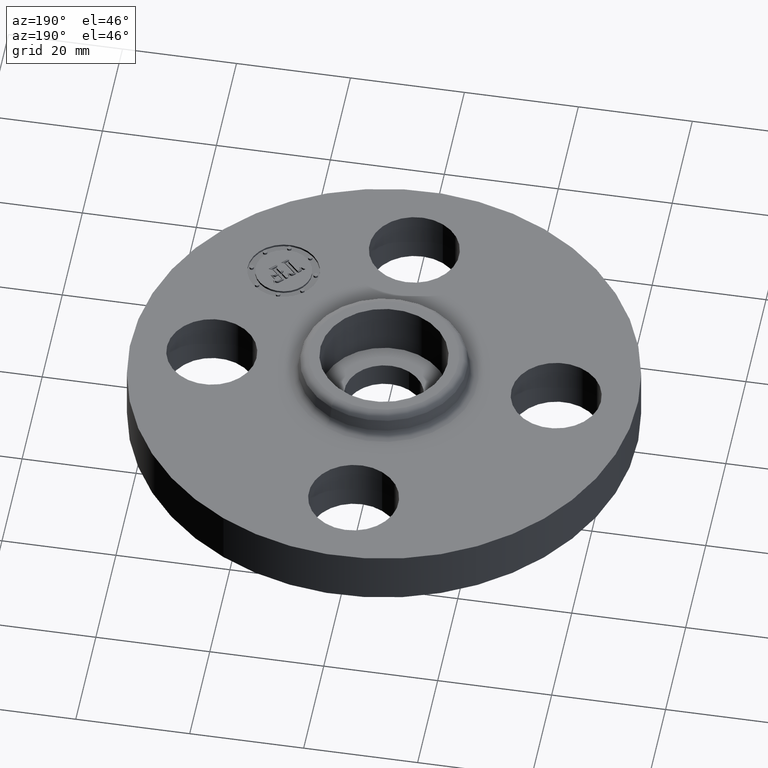
[diagram: clean part render]
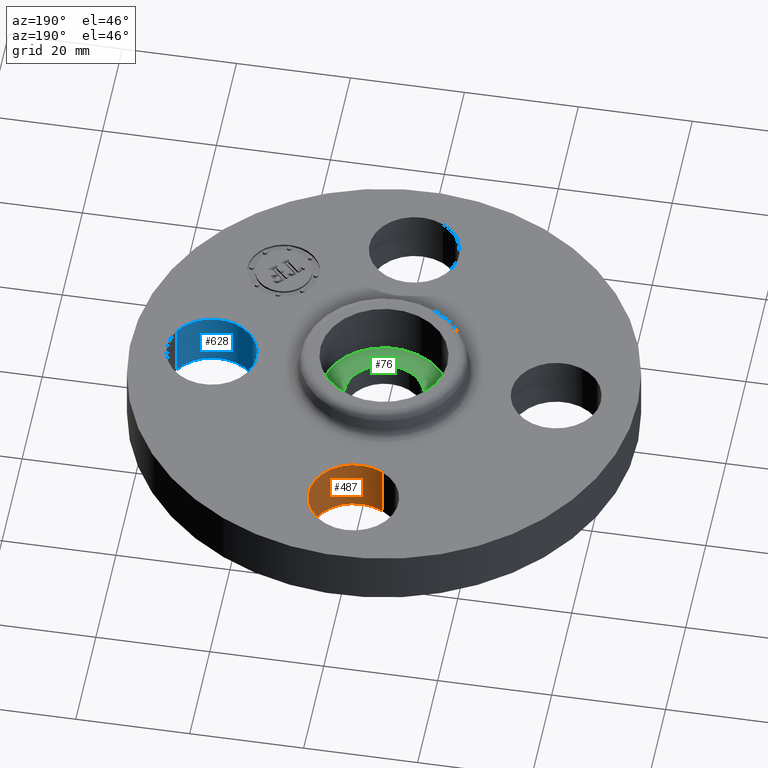
[diagram: same view with three faces highlighted in distinct colors, each labeled with its STEP entity id]
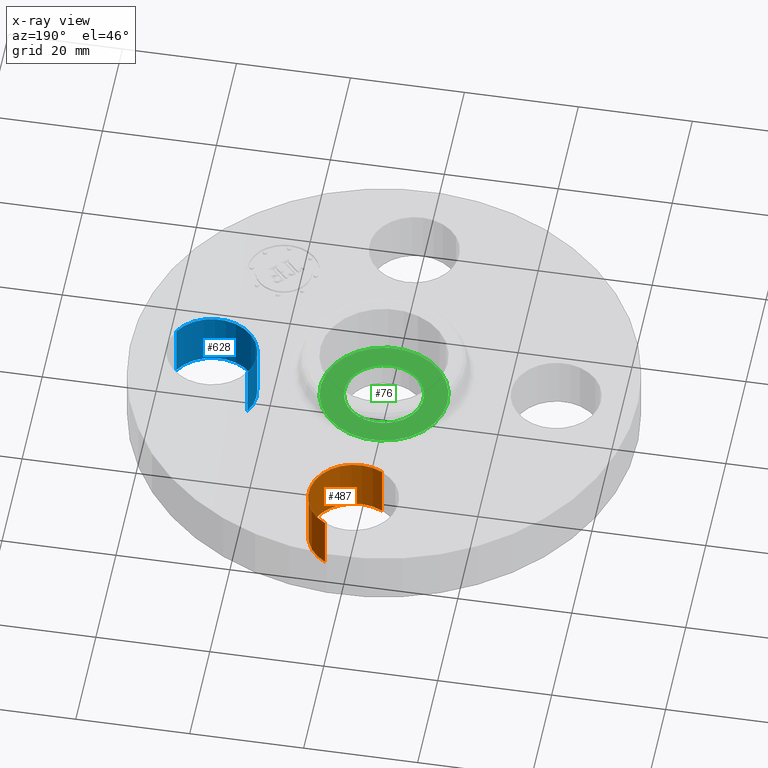
[diagram: x-ray of the same camera — body ghosted, the three highlighted faces saturated]
A machine part, auxiliary view with three faces highlighted in distinct colors.
The next image is the same camera in x-ray (body ghosted, the three faces saturated) — at least one of them is partly hidden behind the body in this view.
Their STEP definitions:

[orange] entity #487 — the highlighted cylindrical surface (partial cylindrical patch) has radius 7.874 mm, axis along (0, 0, -1).
#235=AXIS2_PLACEMENT_3D('Circle Axis2P3D',#233,#234,$) ;
#460=AXIS2_PLACEMENT_3D('Cylinder Axis2P3D',#457,#458,#459) ;
#478=AXIS2_PLACEMENT_3D('Circle Axis2P3D',#476,#477,$) ;
#228=CARTESIAN_POINT('Vertex',(-0.148621916968,0.917949405818,0.)) ;
#230=CARTESIAN_POINT('Vertex',(0.148621916968,1.46205059419,0.)) ;
#233=CARTESIAN_POINT('Axis2P3D Location',(6.99353086378E-017,1.19,0.)) ;
#457=CARTESIAN_POINT('Axis2P3D Location',(-7.87288363731E-017,1.19,0.376062992128)) ;
#462=CARTESIAN_POINT('Line Origine',(0.148621916968,1.46205059419,0.190000000001)) ;
#466=CARTESIAN_POINT('Vertex',(0.148621916968,1.46205059419,0.380000000002)) ;
#469=CARTESIAN_POINT('Line Origine',(-0.148621916968,0.917949405818,0.190000000001)) ;
#473=CARTESIAN_POINT('Vertex',(-0.148621916968,0.917949405818,0.380000000002)) ;
#476=CARTESIAN_POINT('Axis2P3D Location',(-7.87288363731E-017,1.19,0.380000000002)) ;
#234=DIRECTION('Axis2P3D Direction',(0.,0.,-0.0393700787402)) ;
#458=DIRECTION('Axis2P3D Direction',(0.,0.,-0.0393700787402)) ;
#459=DIRECTION('Axis2P3D XDirection',(-0.0188750212049,-0.0345504945626,-0.)) ;
#463=DIRECTION('Vector Direction',(0.,0.,-0.0393700787402)) ;
#470=DIRECTION('Vector Direction',(0.,0.,-0.0393700787402)) ;
#477=DIRECTION('Axis2P3D Direction',(0.,0.,-0.0393700787402)) ;
#464=VECTOR('Line Direction',#463,0.0393700787402) ;
#471=VECTOR('Line Direction',#470,0.0393700787402) ;
#482=ORIENTED_EDGE('',*,*,#468,.F.) ;
#483=ORIENTED_EDGE('',*,*,#237,.T.) ;
#484=ORIENTED_EDGE('',*,*,#475,.T.) ;
#485=ORIENTED_EDGE('',*,*,#480,.F.) ;
#487=ADVANCED_FACE('PartBody',(#486),#461,.F.) ;
#236=CIRCLE('generated circle',#235,0.310000000001) ;
#479=CIRCLE('generated circle',#478,0.310000000001) ;
#461=CYLINDRICAL_SURFACE('generated cylinder',#460,0.310000000001) ;
#237=EDGE_CURVE('',#231,#229,#236,.T.) ;
#468=EDGE_CURVE('',#231,#467,#465,.F.) ;
#475=EDGE_CURVE('',#229,#474,#472,.F.) ;
#480=EDGE_CURVE('',#467,#474,#479,.T.) ;
#481=EDGE_LOOP('',(#482,#483,#484,#485)) ;
#486=FACE_OUTER_BOUND('',#481,.T.) ;
#465=LINE('Line',#462,#464) ;
#472=LINE('Line',#469,#471) ;
#229=VERTEX_POINT('',#228) ;
#231=VERTEX_POINT('',#230) ;
#467=VERTEX_POINT('',#466) ;
#474=VERTEX_POINT('',#473) ;

[blue] entity #628 — the highlighted cylindrical surface (partial cylindrical patch) has radius 7.874 mm, axis along (0, -0, -1).
#168=AXIS2_PLACEMENT_3D('Circle Axis2P3D',#166,#167,$) ;
#589=AXIS2_PLACEMENT_3D('Cylinder Axis2P3D',#586,#587,#588) ;
#619=AXIS2_PLACEMENT_3D('Circle Axis2P3D',#617,#618,$) ;
#166=CARTESIAN_POINT('Axis2P3D Location',(1.19,-1.04902962957E-016,0.)) ;
#170=CARTESIAN_POINT('Vertex',(1.46205059419,-0.148621916968,0.)) ;
#172=CARTESIAN_POINT('Vertex',(0.917949405818,0.148621916968,0.)) ;
#586=CARTESIAN_POINT('Axis2P3D Location',(1.19,0.,0.376062992128)) ;
#591=CARTESIAN_POINT('Line Origine',(0.917949405818,0.148621916968,0.190000000001)) ;
#595=CARTESIAN_POINT('Vertex',(0.917949405818,0.148621916968,0.380000000002)) ;
#598=CARTESIAN_POINT('Line Origine',(1.46205059419,-0.148621916968,0.190000000001)) ;
#602=CARTESIAN_POINT('Vertex',(1.46205059419,-0.148621916968,0.380000000002)) ;
#617=CARTESIAN_POINT('Axis2P3D Location',(1.19,0.,0.380000000002)) ;
#167=DIRECTION('Axis2P3D Direction',(0.,0.,-0.0393700787402)) ;
#587=DIRECTION('Axis2P3D Direction',(0.,-0.,-0.0393700787402)) ;
#588=DIRECTION('Axis2P3D XDirection',(0.0345504945626,-0.0188750212049,0.)) ;
#592=DIRECTION('Vector Direction',(0.,0.,-0.0393700787402)) ;
#599=DIRECTION('Vector Direction',(0.,0.,-0.0393700787402)) ;
#618=DIRECTION('Axis2P3D Direction',(0.,-0.,-0.0393700787402)) ;
#593=VECTOR('Line Direction',#592,0.0393700787402) ;
#600=VECTOR('Line Direction',#599,0.0393700787402) ;
#623=ORIENTED_EDGE('',*,*,#604,.F.) ;
#624=ORIENTED_EDGE('',*,*,#174,.T.) ;
#625=ORIENTED_EDGE('',*,*,#597,.T.) ;
#626=ORIENTED_EDGE('',*,*,#621,.F.) ;
#628=ADVANCED_FACE('PartBody',(#627),#590,.F.) ;
#169=CIRCLE('generated circle',#168,0.310000000001) ;
#620=CIRCLE('generated circle',#619,0.310000000001) ;
#590=CYLINDRICAL_SURFACE('generated cylinder',#589,0.310000000001) ;
#174=EDGE_CURVE('',#171,#173,#169,.T.) ;
#597=EDGE_CURVE('',#173,#596,#594,.F.) ;
#604=EDGE_CURVE('',#171,#603,#601,.F.) ;
#621=EDGE_CURVE('',#603,#596,#620,.T.) ;
#622=EDGE_LOOP('',(#623,#624,#625,#626)) ;
#627=FACE_OUTER_BOUND('',#622,.T.) ;
#594=LINE('Line',#591,#593) ;
#601=LINE('Line',#598,#600) ;
#171=VERTEX_POINT('',#170) ;
#173=VERTEX_POINT('',#172) ;
#596=VERTEX_POINT('',#595) ;
#603=VERTEX_POINT('',#602) ;

[green] entity #76 — the highlighted planar face has unit normal (0, 0, -1).
#38=AXIS2_PLACEMENT_3D('Plane Axis2P3D',#35,#36,#37) ;
#42=AXIS2_PLACEMENT_3D('Circle Axis2P3D',#40,#41,$) ;
#51=AXIS2_PLACEMENT_3D('Circle Axis2P3D',#49,#50,$) ;
#60=AXIS2_PLACEMENT_3D('Circle Axis2P3D',#58,#59,$) ;
#69=AXIS2_PLACEMENT_3D('Circle Axis2P3D',#67,#68,$) ;
#35=CARTESIAN_POINT('Axis2P3D Location',(0.,-6.99353086378E-017,0.180000000001)) ;
#40=CARTESIAN_POINT('Axis2P3D Location',(0.,-6.99353086378E-017,0.180000000001)) ;
#44=CARTESIAN_POINT('Vertex',(-0.386136327233,0.210947236987,0.180000000001)) ;
#46=CARTESIAN_POINT('Vertex',(0.386136327233,-0.210947236987,0.180000000001)) ;
#49=CARTESIAN_POINT('Axis2P3D Location',(0.,-6.99353086378E-017,0.180000000001)) ;
#58=CARTESIAN_POINT('Axis2P3D Location',(-3.49676543189E-017,8.74191357973E-018,0.180000000001)) ;
#62=CARTESIAN_POINT('Vertex',(-0.130883172039,-0.239580039397,0.180000000001)) ;
#64=CARTESIAN_POINT('Vertex',(0.130883172039,0.239580039397,0.180000000001)) ;
#67=CARTESIAN_POINT('Axis2P3D Location',(0.,-2.62257407392E-017,0.180000000001)) ;
#36=DIRECTION('Axis2P3D Direction',(0.,0.,-0.0393700787402)) ;
#37=DIRECTION('Axis2P3D XDirection',(0.0393700787402,0.,0.)) ;
#41=DIRECTION('Axis2P3D Direction',(0.,0.,-0.0393700787402)) ;
#50=DIRECTION('Axis2P3D Direction',(0.,0.,-0.0393700787402)) ;
#59=DIRECTION('Axis2P3D Direction',(0.,0.,-0.0393700787402)) ;
#68=DIRECTION('Axis2P3D Direction',(0.,0.,-0.0393700787402)) ;
#55=ORIENTED_EDGE('',*,*,#48,.F.) ;
#56=ORIENTED_EDGE('',*,*,#53,.F.) ;
#73=ORIENTED_EDGE('',*,*,#66,.T.) ;
#74=ORIENTED_EDGE('',*,*,#71,.T.) ;
#75=FACE_BOUND('',#72,.T.) ;
#76=ADVANCED_FACE('PartBody',(#57,#75),#39,.F.) ;
#43=CIRCLE('generated circle',#42,0.440000000002) ;
#52=CIRCLE('generated circle',#51,0.440000000002) ;
#61=CIRCLE('generated circle',#60,0.273000000001) ;
#70=CIRCLE('generated circle',#69,0.273000000001) ;
#48=EDGE_CURVE('',#45,#47,#43,.T.) ;
#53=EDGE_CURVE('',#47,#45,#52,.T.) ;
#66=EDGE_CURVE('',#63,#65,#61,.T.) ;
#71=EDGE_CURVE('',#65,#63,#70,.T.) ;
#54=EDGE_LOOP('',(#55,#56)) ;
#72=EDGE_LOOP('',(#73,#74)) ;
#57=FACE_OUTER_BOUND('',#54,.T.) ;
#39=PLANE('',#38) ;
#45=VERTEX_POINT('',#44) ;
#47=VERTEX_POINT('',#46) ;
#63=VERTEX_POINT('',#62) ;
#65=VERTEX_POINT('',#64) ;